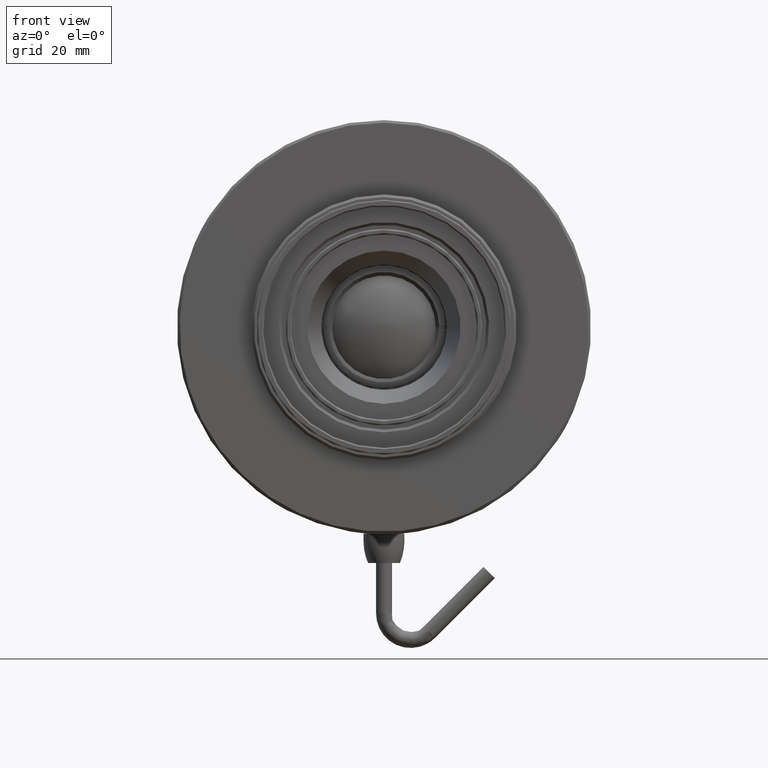
[diagram: clean part render]
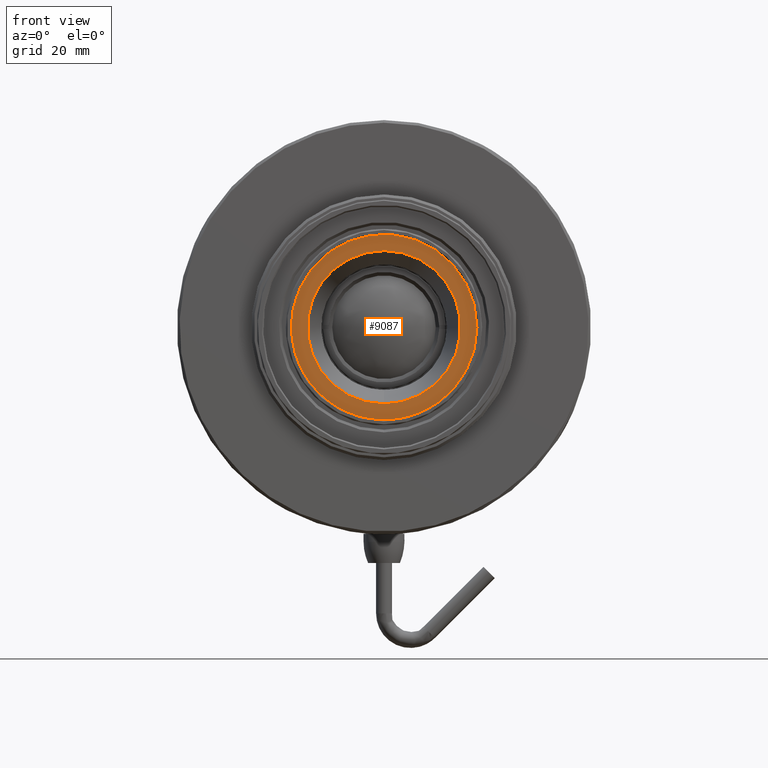
[diagram: same view with one face highlighted and labeled with its STEP entity id]
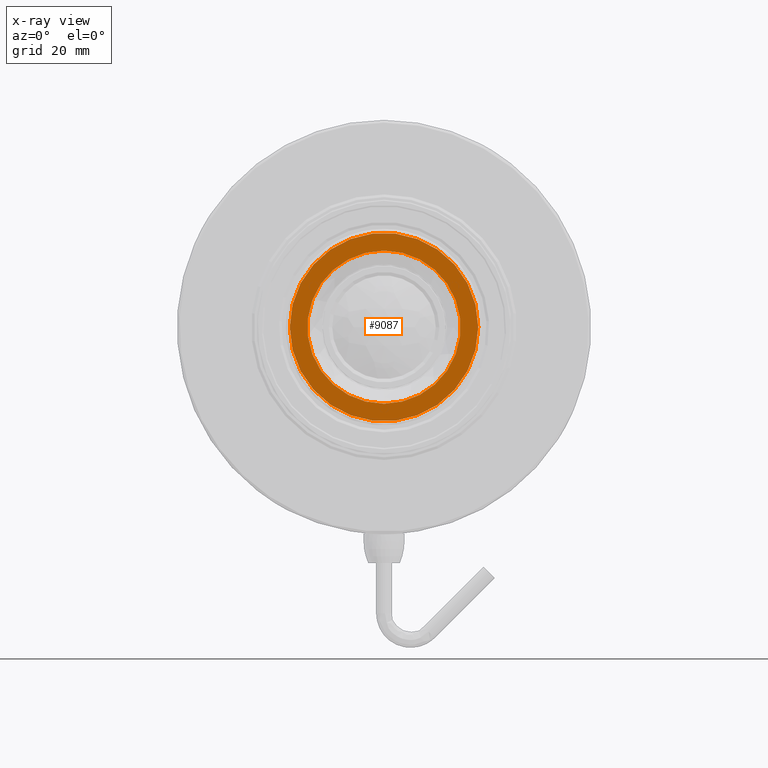
[diagram: x-ray of the same camera — body ghosted, the highlighted face saturated]
A machine part, front view. The second image highlights one B-rep face of the part: STEP entity #9087.
The next image is the same camera in x-ray: the body ghosted, the highlighted face saturated — about 0% of this face is hidden behind the body in this view.
In plain terms, the highlighted planar face has unit normal (0, 1, -0).
Its self-contained STEP definition (entity closure, byte-faithful):
#361 = VERTEX_POINT ( 'NONE', #602 ) ;
#602 = CARTESIAN_POINT ( 'NONE',  ( -2.602085213965210642E-15, -59.65603120081730282, -14.43111445823119965 ) ) ;
#646 = DIRECTION ( 'NONE',  ( 0.000000000000000000, 0.000000000000000000, -1.000000000000000000 ) ) ;
#936 = AXIS2_PLACEMENT_3D ( 'NONE', #4413, #3576, #646 ) ;
#1003 = FACE_OUTER_BOUND ( 'NONE', #3074, .T. ) ;
#1111 = ORIENTED_EDGE ( 'NONE', *, *, #8706, .T. ) ;
#1321 = CIRCLE ( 'NONE', #936, 14.43111445823119787 ) ;
#2237 = EDGE_CURVE ( 'NONE', #361, #361, #1321, .T. ) ;
#2873 = DIRECTION ( 'NONE',  ( 1.000000000000000000, 0.000000000000000000, 0.000000000000000000 ) ) ;
#2914 = AXIS2_PLACEMENT_3D ( 'NONE', #11186, #11888, #3570 ) ;
#3074 = EDGE_LOOP ( 'NONE', ( #1111 ) ) ;
#3570 = DIRECTION ( 'NONE',  ( -1.000000000000000000, 6.123031769111889989E-17, 0.000000000000000000 ) ) ;
#3576 = DIRECTION ( 'NONE',  ( -5.779905801006098431E-32, -1.000000000000000000, 2.404143465146391700E-16 ) ) ;
#4413 = CARTESIAN_POINT ( 'NONE',  ( -2.602085213965210642E-15, -59.65603120081730282, -1.734723475976810250E-15 ) ) ;
#4539 = PLANE ( 'NONE',  #2914 ) ;
#7664 = EDGE_LOOP ( 'NONE', ( #10203 ) ) ;
#8111 = CIRCLE ( 'NONE', #10253, 17.75000000000000355 ) ;
#8431 = CARTESIAN_POINT ( 'NONE',  ( -3.108052836437151500E-15, -59.65603120081730282, -1.734723475976810250E-15 ) ) ;
#8706 = EDGE_CURVE ( 'NONE', #9815, #9815, #8111, .T. ) ;
#8731 = CARTESIAN_POINT ( 'NONE',  ( 17.75000000000000000, -59.65603120081730282, -1.734723475976810250E-15 ) ) ;
#9087 = ADVANCED_FACE ( 'NONE', ( #11943, #1003 ), #4539, .F. ) ;
#9360 = DIRECTION ( 'NONE',  ( -6.123031769111889989E-17, -1.000000000000000000, 0.000000000000000000 ) ) ;
#9815 = VERTEX_POINT ( 'NONE', #8731 ) ;
#10203 = ORIENTED_EDGE ( 'NONE', *, *, #2237, .F. ) ;
#10253 = AXIS2_PLACEMENT_3D ( 'NONE', #8431, #9360, #2873 ) ;
#11186 = CARTESIAN_POINT ( 'NONE',  ( -3.108052836437149922E-15, -59.65603120081730282, 14.43111445823119965 ) ) ;
#11888 = DIRECTION ( 'NONE',  ( 6.123031769111889989E-17, 1.000000000000000000, -0.000000000000000000 ) ) ;
#11943 = FACE_BOUND ( 'NONE', #7664, .T. ) ;